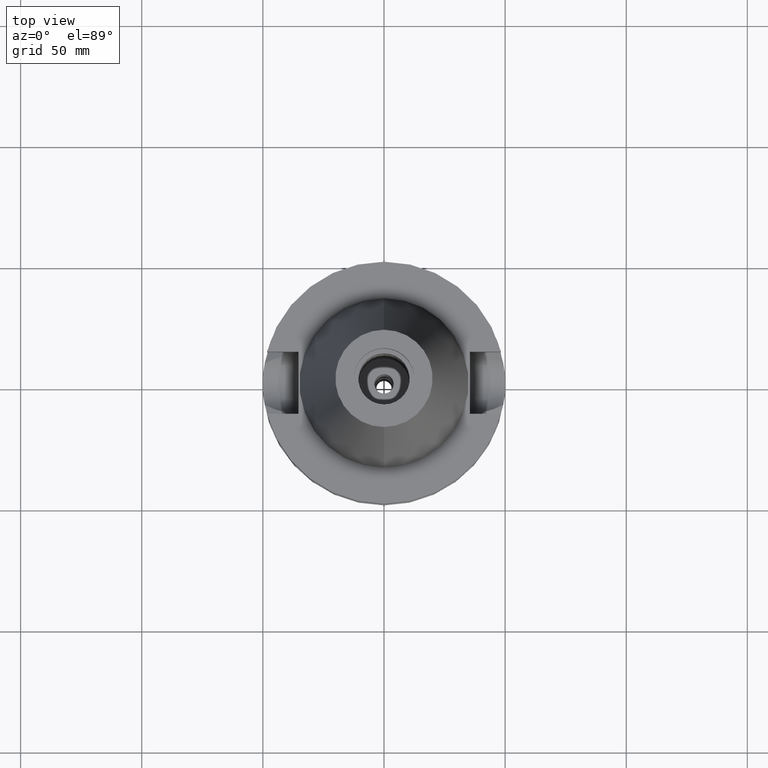
[diagram: clean part render]
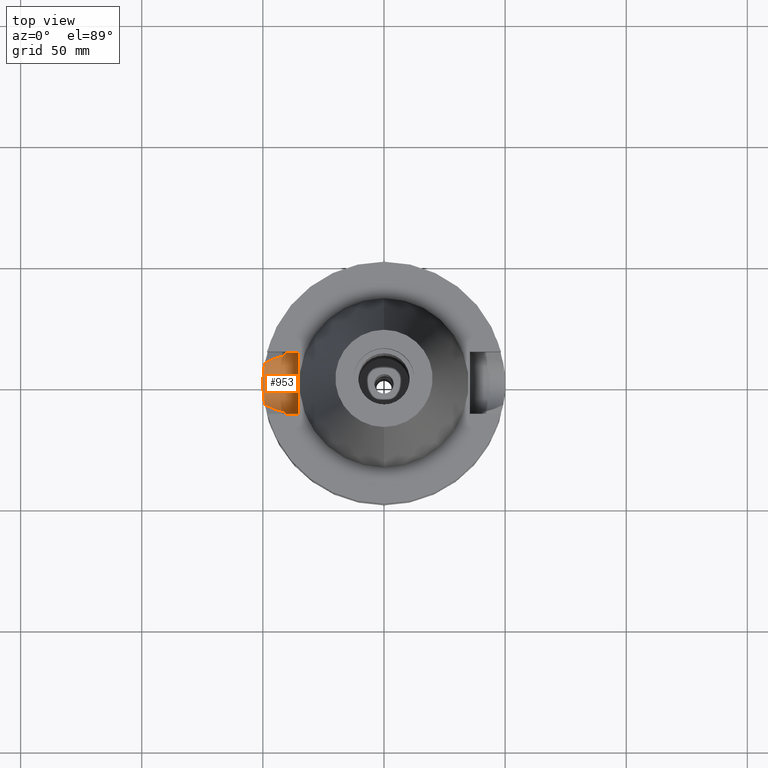
[diagram: same view with one face highlighted and labeled with its STEP entity id]
A machine part, top view. The second image highlights one B-rep face of the part: STEP entity #953.
In plain terms, the highlighted cylindrical surface (edge-blend (fillet) strip) has radius 12.85 mm, axis along (-1, 0, 0).
Its self-contained STEP definition (entity closure, byte-faithful):
#7 = CARTESIAN_POINT ( 'NONE',  ( -49.79190313580877358, 4.556817177125533469, -33.16490932789630364 ) ) ;
#9 = ORIENTED_EDGE ( 'NONE', *, *, #1934, .F. ) ;
#25 = CARTESIAN_POINT ( 'NONE',  ( -49.99918878544974632, 0.2915256912491507313, -33.99728939609978795 ) ) ;
#133 = CARTESIAN_POINT ( 'NONE',  ( -45.39752549457913489, -10.35896172530817161, -28.75360426430097860 ) ) ;
#217 = CARTESIAN_POINT ( 'NONE',  ( -40.51083188481999997, -12.84999999999998899, -22.03311098679651536 ) ) ;
#269 = CARTESIAN_POINT ( 'NONE',  ( -49.52345606502953501, 6.887109230730162679, -31.99909553111326233 ) ) ;
#279 = B_SPLINE_CURVE_WITH_KNOTS ( 'NONE', 3,
 ( #2786, #3357, #3089, #1391, #2530, #1041, #2750, #3670, #2168, #3306, #744, #3021, #472, #1600 ),
 .UNSPECIFIED., .F., .F.,
 ( 4, 2, 2, 1, 1, 2, 2, 4 ),
 ( 0.0000000000000000000, 0.2499999999999872324, 0.3749999999999807376, 0.4374999999999776845, 0.4687499999999753530, 0.4843749999999753530, 0.4999999999999753530, 1.000000000000000000 ),
 .UNSPECIFIED. ) ;
#288 = CARTESIAN_POINT ( 'NONE',  ( -49.91487582340965901, 3.004850454654083514, -33.66796213084406730 ) ) ;
#311 = CARTESIAN_POINT ( 'NONE',  ( -49.32369756959816698, 8.203703595875605714, -31.05175613994101980 ) ) ;
#326 = CARTESIAN_POINT ( 'NONE',  ( -49.99187023699030163, 0.9036077928675025905, -33.96960422973165805 ) ) ;
#347 = CARTESIAN_POINT ( 'NONE',  ( -49.66426015272440964, -5.786401570524954074, -32.62507869665538607 ) ) ;
#424 = CARTESIAN_POINT ( 'NONE',  ( -35.39999999999999858, 1.497743035356999952E-14, -21.14999999999999858 ) ) ;
#425 = EDGE_CURVE ( 'NONE', #450, #988, #2725, .T. ) ;
#441 = CARTESIAN_POINT ( 'NONE',  ( -45.32604759747161438, -10.38583453844825044, -28.71683438483158568 ) ) ;
#447 = B_SPLINE_CURVE_WITH_KNOTS ( 'NONE', 3,
 ( #3448, #311, #2836, #1103, #1155, #1451, #269, #3684, #3120, #2571, #2590, #1138, #1691, #2285, #2552, #1427, #2005, #1749, #3181, #1975, #1709, #2888, #7, #1121, #888, #288, #2246, #3411, #326, #1466, #25, #2852, #2026, #852, #1769, #1989, #1409, #607, #2608, #1175, #1729, #2048, #2902, #3470, #911, #625, #3389, #3429, #832, #347, #2532, #2874, #3671, #867, #3110, #552, #568, #3546, #3284, #2347, #686, #2127 ),
 .UNSPECIFIED., .F., .F.,
 ( 4, 2, 2, 1, 1, 1, 1, 2, 2, 2, 2, 1, 1, 1, 2, 2, 2, 2, 1, 1, 1, 2, 2, 2, 2, 1, 1, 1, 1, 2, 2, 2, 2, 1, 1, 1, 1, 2, 2, 4 ),
 ( 0.0000000000000000000, 0.06250000000002133016, 0.09375000000003193279, 0.1093750000000369982, 0.1171875000000398570, 0.1210937500000410089, 0.1230468750000415917, 0.1240234375000418138, 0.1250000000000420219, 0.1875000000000318079, 0.2187500000000266454, 0.2343750000000237865, 0.2421875000000224543, 0.2460937500000217326, 0.2480468750000216216, 0.2500000000000214828, 0.3750000000000229261, 0.4375000000000237588, 0.4687500000000241474, 0.4843750000000243139, 0.4921875000000244249, 0.4960937500000244804, 0.5000000000000245359, 0.6250000000000260902, 0.6875000000000267564, 0.7187500000000270894, 0.7343750000000270894, 0.7421875000000270894, 0.7460937500000273115, 0.7480468750000272005, 0.7500000000000270894, 0.8125000000000284217, 0.8437500000000290878, 0.8593750000000294209, 0.8671875000000298650, 0.8710937500000304201, 0.8730468750000306422, 0.8740234375000304201, 0.8750000000000301981, 1.000000000000000000 ),
 .UNSPECIFIED. ) ;
#450 = VERTEX_POINT ( 'NONE', #1271 ) ;
#457 = CARTESIAN_POINT ( 'NONE',  ( -49.26250064874000145, -8.556052234130000045, -30.73730776426999967 ) ) ;
#458 = CARTESIAN_POINT ( 'NONE',  ( -40.73816994080947751, 12.11682134610114936, -25.53412886424079886 ) ) ;
#467 = CARTESIAN_POINT ( 'NONE',  ( -40.63720115041248704, -12.44498656811013859, -24.35265160711855970 ) ) ;
#472 = CARTESIAN_POINT ( 'NONE',  ( -48.18081148163940952, 9.176796814631364541, -30.18333336547032530 ) ) ;
#475 = CARTESIAN_POINT ( 'NONE',  ( -40.51083188482000708, 12.85000000000001918, -21.59155814782481997 ) ) ;
#552 = CARTESIAN_POINT ( 'NONE',  ( -49.55867599779658406, -6.628592828939058101, -32.15838541685431551 ) ) ;
#568 = CARTESIAN_POINT ( 'NONE',  ( -49.55645080412972447, -6.645196272271792104, -32.14835934793998717 ) ) ;
#577 = CARTESIAN_POINT ( 'NONE',  ( -49.26250064874000145, 8.556052234130000045, -30.73730776426999967 ) ) ;
#597 = VECTOR ( 'NONE', #2196, 1000.000000000000000 ) ;
#607 = CARTESIAN_POINT ( 'NONE',  ( -49.92883535247280946, -2.681505937780090942, -33.72308165360714582 ) ) ;
#625 = CARTESIAN_POINT ( 'NONE',  ( -49.79134522950125330, -4.562917809081644016, -33.16259509173715969 ) ) ;
#686 = CARTESIAN_POINT ( 'NONE',  ( -49.38319382134579882, -7.861146764715416957, -31.35746596094909933 ) ) ;
#690 = CARTESIAN_POINT ( 'NONE',  ( -45.47884135725999499, -10.32818437781529752, -28.79543308990514205 ) ) ;
#703 = VERTEX_POINT ( 'NONE', #3619 ) ;
#710 = CARTESIAN_POINT ( 'NONE',  ( -46.22801765030641263, -10.03216824677965668, -29.18067066775586227 ) ) ;
#734 = CARTESIAN_POINT ( 'NONE',  ( -40.51083188481999997, 12.84999999999999964, -21.14999999999999858 ) ) ;
#744 = CARTESIAN_POINT ( 'NONE',  ( -45.48377902170304310, 10.32617152239460445, -28.79810286287142418 ) ) ;
#753 = EDGE_CURVE ( 'NONE', #3540, #450, #447, .T. ) ;
#789 = CARTESIAN_POINT ( 'NONE',  ( -40.54944865802444554, 12.72805685032255951, -22.93054388468756244 ) ) ;
#798 = LINE ( 'NONE', #1616, #597 ) ;
#812 = CYLINDRICAL_SURFACE ( 'NONE', #2979, 12.85000000000000320 ) ;
#832 = CARTESIAN_POINT ( 'NONE',  ( -49.72318384391200397, -5.264673822190257368, -32.87839317490580271 ) ) ;
#852 = CARTESIAN_POINT ( 'NONE',  ( -49.99991736553727861, 0.01130191160649509675, -34.00001617349634131 ) ) ;
#867 = CARTESIAN_POINT ( 'NONE',  ( -49.57410189276428980, -6.512428102365150906, -32.22769848499617495 ) ) ;
#888 = CARTESIAN_POINT ( 'NONE',  ( -49.86308249906416279, 3.775850015763280609, -33.45954281451273005 ) ) ;
#911 = CARTESIAN_POINT ( 'NONE',  ( -49.79350631850828535, -4.539276377522185157, -33.17154855827365623 ) ) ;
#912 = CARTESIAN_POINT ( 'NONE',  ( -40.85052569294000335, 11.72538061688000077, -26.40718074535000426 ) ) ;
#917 = B_SPLINE_CURVE_WITH_KNOTS ( 'NONE', 3,
 ( #2177, #1084, #2228, #2781, #3017, #467, #2213, #3381, #3365, #1936, #3083, #2767, #217, #1334 ),
 .UNSPECIFIED., .F., .F.,
 ( 4, 2, 2, 1, 1, 2, 2, 4 ),
 ( 0.0000000000000000000, 0.2500000000000079381, 0.3750000000000107692, 0.4375000000000123235, 0.4687500000000121569, 0.4843750000000121569, 0.5000000000000121014, 1.000000000000000000 ),
 .UNSPECIFIED. ) ;
#953 = ADVANCED_FACE ( 'NONE', ( #1882 ), #812, .F. ) ;
#975 = ORIENTED_EDGE ( 'NONE', *, *, #2868, .T. ) ;
#988 = VERTEX_POINT ( 'NONE', #1301 ) ;
#998 = EDGE_CURVE ( 'NONE', #3382, #703, #798, .T. ) ;
#1032 = CARTESIAN_POINT ( 'NONE',  ( -40.85052569294000335, 11.72538061688000077, -26.40718074535000426 ) ) ;
#1041 = CARTESIAN_POINT ( 'NONE',  ( -44.65682647268858574, 10.62864182119725598, -28.37268294631928001 ) ) ;
#1045 = CARTESIAN_POINT ( 'NONE',  ( -40.54025418821385784, 12.75731235968221178, -22.70688809822139831 ) ) ;
#1084 = CARTESIAN_POINT ( 'NONE',  ( -40.79434747814746487, -11.92110216159726477, -25.97065217273899052 ) ) ;
#1103 = CARTESIAN_POINT ( 'NONE',  ( -49.45252181870450414, 7.379311468487084191, -31.67177590204756754 ) ) ;
#1121 = CARTESIAN_POINT ( 'NONE',  ( -49.79275732134239973, 4.547483022017773102, -33.16844661958323570 ) ) ;
#1133 = AXIS2_PLACEMENT_3D ( 'NONE', #424, #3558, #1209 ) ;
#1138 = CARTESIAN_POINT ( 'NONE',  ( -49.55601938755157221, 6.648398653708681216, -32.14642309857691771 ) ) ;
#1155 = CARTESIAN_POINT ( 'NONE',  ( -49.47556776255890298, 7.223238671039283076, -31.77919332691482524 ) ) ;
#1175 = CARTESIAN_POINT ( 'NONE',  ( -49.86764686228202947, -3.636664092212686494, -33.47624956171179633 ) ) ;
#1209 = DIRECTION ( 'NONE',  ( 0.0000000000000000000, -1.000000000000000000, 0.0000000000000000000 ) ) ;
#1249 = CARTESIAN_POINT ( 'NONE',  ( -35.39999999999999858, -12.84999999999999964, -21.14999999999999858 ) ) ;
#1271 = CARTESIAN_POINT ( 'NONE',  ( -49.26250064874000145, -8.556052234130000045, -30.73730776426999967 ) ) ;
#1273 = LINE ( 'NONE', #3554, #2981 ) ;
#1274 = ORIENTED_EDGE ( 'NONE', *, *, #2606, .T. ) ;
#1301 = CARTESIAN_POINT ( 'NONE',  ( -40.85052569294000335, -11.72538061688000077, -26.40718074535000426 ) ) ;
#1305 = CARTESIAN_POINT ( 'NONE',  ( -48.69464159862322106, -8.881927206880240178, -30.44648542319169948 ) ) ;
#1334 = CARTESIAN_POINT ( 'NONE',  ( -40.51083188481999997, -12.84999999999999964, -21.14999999999999858 ) ) ;
#1391 = CARTESIAN_POINT ( 'NONE',  ( -43.73413399326548046, 10.93838328694445039, -27.89750808227450207 ) ) ;
#1409 = CARTESIAN_POINT ( 'NONE',  ( -49.98151726922713323, -1.537017213945275573, -33.93129506484088154 ) ) ;
#1427 = CARTESIAN_POINT ( 'NONE',  ( -49.70802902540889789, 5.397483289437420062, -32.81309430075868505 ) ) ;
#1451 = CARTESIAN_POINT ( 'NONE',  ( -49.50787092336805273, 6.997722633599319231, -31.92787014503069898 ) ) ;
#1466 = CARTESIAN_POINT ( 'NONE',  ( -49.99656935723672291, 0.6200430165758886725, -33.98744614804078168 ) ) ;
#1547 = ORIENTED_EDGE ( 'NONE', *, *, #425, .T. ) ;
#1600 = CARTESIAN_POINT ( 'NONE',  ( -49.26250064874000145, 8.556052234130000045, -30.73730776426999967 ) ) ;
#1616 = CARTESIAN_POINT ( 'NONE',  ( -40.51083188481999997, 12.84999999999999964, -21.14999999999999858 ) ) ;
#1691 = CARTESIAN_POINT ( 'NONE',  ( -49.55642839046791437, 6.645350892882539107, -32.14826596383186796 ) ) ;
#1709 = CARTESIAN_POINT ( 'NONE',  ( -49.78701911214649556, 4.609908264338869799, -33.14467182157365244 ) ) ;
#1729 = CARTESIAN_POINT ( 'NONE',  ( -49.84637315204867036, -3.922661578333166865, -33.38950660949421945 ) ) ;
#1749 = CARTESIAN_POINT ( 'NONE',  ( -49.75306724046138385, 4.963223255169641135, -33.00317556818499298 ) ) ;
#1769 = CARTESIAN_POINT ( 'NONE',  ( -49.99991625533953510, -0.01371456479971565681, -34.00001357600843477 ) ) ;
#1845 = VERTEX_POINT ( 'NONE', #1249 ) ;
#1871 = CARTESIAN_POINT ( 'NONE',  ( -40.57496331174878890, 12.64632619881939668, -23.43376116606531667 ) ) ;
#1882 = FACE_OUTER_BOUND ( 'NONE', #2646, .T. ) ;
#1920 = DIRECTION ( 'NONE',  ( 0.0000000000000000000, 0.0000000000000000000, -1.000000000000000000 ) ) ;
#1934 = EDGE_CURVE ( 'NONE', #1845, #2605, #1273, .T. ) ;
#1936 = CARTESIAN_POINT ( 'NONE',  ( -40.60257358959407270, -12.55730255709575616, -23.87715530986269385 ) ) ;
#1975 = CARTESIAN_POINT ( 'NONE',  ( -49.78008232300462765, 4.684409442613518770, -33.11588758421653722 ) ) ;
#1989 = CARTESIAN_POINT ( 'NONE',  ( -49.99935165416789573, -0.7784239455592615320, -33.99781837041427934 ) ) ;
#2005 = CARTESIAN_POINT ( 'NONE',  ( -49.72668424268396592, 5.222831056704321462, -32.89222978299362410 ) ) ;
#2026 = CARTESIAN_POINT ( 'NONE',  ( -49.99988398040463267, 0.05792329643793676236, -33.99989059424450488 ) ) ;
#2048 = CARTESIAN_POINT ( 'NONE',  ( -49.81871769257744376, -4.255133180566219586, -33.27576126222464126 ) ) ;
#2127 = CARTESIAN_POINT ( 'NONE',  ( -49.26250064874000145, -8.556052234130000045, -30.73730776426999967 ) ) ;
#2150 = CARTESIAN_POINT ( 'NONE',  ( -40.85052569294000335, -11.72538061688000077, -26.40718074535000426 ) ) ;
#2168 = CARTESIAN_POINT ( 'NONE',  ( -45.35775471826055139, 10.37386167784956825, -28.73328654239062629 ) ) ;
#2177 = CARTESIAN_POINT ( 'NONE',  ( -40.85052569294000335, -11.72538061688000077, -26.40718074535000426 ) ) ;
#2184 = CARTESIAN_POINT ( 'NONE',  ( -40.65436097482999855, 12.39000951528301364, -24.66364262356657377 ) ) ;
#2196 = DIRECTION ( 'NONE',  ( 1.000000000000000000, 3.301887120261000215E-14, -2.502482870091999982E-14 ) ) ;
#2203 = ORIENTED_EDGE ( 'NONE', *, *, #998, .F. ) ;
#2213 = CARTESIAN_POINT ( 'NONE',  ( -40.62483164124756030, -12.48524007483834097, -24.19334343394760722 ) ) ;
#2228 = CARTESIAN_POINT ( 'NONE',  ( -40.74530552705318343, -12.08734373585977018, -25.53456320654999345 ) ) ;
#2246 = CARTESIAN_POINT ( 'NONE',  ( -49.96639091858009607, 1.855009112725644504, -33.87135770005406954 ) ) ;
#2270 = CIRCLE ( 'NONE', #1133, 12.84999999999999964 ) ;
#2285 = CARTESIAN_POINT ( 'NONE',  ( -49.60515397022284390, 6.281699428066808366, -32.36773838318623575 ) ) ;
#2347 = CARTESIAN_POINT ( 'NONE',  ( -49.48018584324755409, -7.212056195266530523, -31.80433119710467693 ) ) ;
#2413 = CARTESIAN_POINT ( 'NONE',  ( -46.75505769100767139, -9.811300290057515028, -29.45151618928202097 ) ) ;
#2470 = CARTESIAN_POINT ( 'NONE',  ( -40.58662879532096923, 12.60876850763472490, -23.62934185162412248 ) ) ;
#2530 = CARTESIAN_POINT ( 'NONE',  ( -44.11097139946421208, 10.81602773071208468, -28.09166750528168777 ) ) ;
#2532 = CARTESIAN_POINT ( 'NONE',  ( -49.64357081513688996, -5.961532522826956892, -32.53519818224370397 ) ) ;
#2552 = CARTESIAN_POINT ( 'NONE',  ( -49.64886371731348902, 5.925076879177442635, -32.55913415156561541 ) ) ;
#2571 = CARTESIAN_POINT ( 'NONE',  ( -49.55310733094160014, 6.670070396123554346, -32.13329829195288312 ) ) ;
#2577 = ORIENTED_EDGE ( 'NONE', *, *, #3363, .T. ) ;
#2590 = CARTESIAN_POINT ( 'NONE',  ( -49.55485633502866705, 6.657059842545933748, -32.14118191434904048 ) ) ;
#2605 = VERTEX_POINT ( 'NONE', #2769 ) ;
#2606 = EDGE_CURVE ( 'NONE', #3267, #3540, #279, .T. ) ;
#2608 = CARTESIAN_POINT ( 'NONE',  ( -49.90695299033081511, -3.064054276654787135, -33.63563523808346645 ) ) ;
#2646 = EDGE_LOOP ( 'NONE', ( #2577, #9, #3426, #2203, #975, #1274, #2893, #1547 ) ) ;
#2654 = CARTESIAN_POINT ( 'NONE',  ( -42.52884939900980044, -11.33562612316247531, -27.27647172227283789 ) ) ;
#2697 = CARTESIAN_POINT ( 'NONE',  ( -45.96028322357604878, -10.14133759930534495, -29.04303852548128617 ) ) ;
#2725 = B_SPLINE_CURVE_WITH_KNOTS ( 'NONE', 3,
 ( #457, #1305, #3552, #3567, #2413, #710, #2697, #3291, #690, #133, #2990, #2936, #441, #3009, #2654, #2150 ),
 .UNSPECIFIED., .F., .F.,
 ( 4, 2, 2, 1, 1, 1, 1, 2, 2, 4 ),
 ( 0.0000000000000000000, 0.2500000000000531797, 0.3750000000000797695, 0.4375000000000933142, 0.4687500000001000311, 0.4843750000001036393, 0.4921875000001046940, 0.4960937500001051381, 0.5000000000001055822, 1.000000000000000000 ),
 .UNSPECIFIED. ) ;
#2750 = CARTESIAN_POINT ( 'NONE',  ( -44.92490375028230432, 10.53398466652059540, -28.51063611605064452 ) ) ;
#2767 = CARTESIAN_POINT ( 'NONE',  ( -40.54025177940136615, -12.75862267497680236, -22.93154239031998998 ) ) ;
#2769 = CARTESIAN_POINT ( 'NONE',  ( -40.51083188481999997, -12.84999999999999964, -21.14999999999999858 ) ) ;
#2781 = CARTESIAN_POINT ( 'NONE',  ( -40.68244699595920366, -12.29665972424316855, -24.88712495127480651 ) ) ;
#2786 = CARTESIAN_POINT ( 'NONE',  ( -40.85052569294000335, 11.72538061688000077, -26.40718074535000426 ) ) ;
#2787 = B_SPLINE_CURVE_WITH_KNOTS ( 'NONE', 3,
 ( #734, #475, #3588, #1045, #789, #3608, #1871, #2470, #3553, #3309, #3010, #2184, #458, #1032 ),
 .UNSPECIFIED., .F., .F.,
 ( 4, 2, 2, 1, 1, 2, 2, 4 ),
 ( 0.0000000000000000000, 0.2499999999999882871, 0.3749999999999835132, 0.4374999999999812927, 0.4687499999999811262, 0.4843749999999810707, 0.4999999999999810152, 1.000000000000000000 ),
 .UNSPECIFIED. ) ;
#2836 = CARTESIAN_POINT ( 'NONE',  ( -49.37885247719656689, 7.862144687236257035, -31.32188303336105761 ) ) ;
#2852 = CARTESIAN_POINT ( 'NONE',  ( -49.99978277987096220, 0.1279040283714520387, -33.99951180099083103 ) ) ;
#2868 = EDGE_CURVE ( 'NONE', #3382, #3267, #2787, .T. ) ;
#2874 = CARTESIAN_POINT ( 'NONE',  ( -49.61096464796816008, -6.225456151459805909, -32.39171795695273204 ) ) ;
#2888 = CARTESIAN_POINT ( 'NONE',  ( -49.78995452580679171, 4.578044775722847071, -33.15683700958722113 ) ) ;
#2893 = ORIENTED_EDGE ( 'NONE', *, *, #753, .T. ) ;
#2902 = CARTESIAN_POINT ( 'NONE',  ( -49.80418093012539771, -4.420986045285522081, -33.21572998610044181 ) ) ;
#2936 = CARTESIAN_POINT ( 'NONE',  ( -45.33925616023898186, -10.38088120372761303, -28.72362928943382698 ) ) ;
#2979 = AXIS2_PLACEMENT_3D ( 'NONE', #3059, #3073, #1920 ) ;
#2981 = VECTOR ( 'NONE', #3517, 1000.000000000000000 ) ;
#2990 = CARTESIAN_POINT ( 'NONE',  ( -45.36257706399497636, -10.37211797163372040, -28.73562614173595975 ) ) ;
#3009 = CARTESIAN_POINT ( 'NONE',  ( -44.01730827850749961, -10.87583879569200640, -28.04357024469653226 ) ) ;
#3010 = CARTESIAN_POINT ( 'NONE',  ( -40.59737185188193109, 12.57410792978862091, -23.79858982319761651 ) ) ;
#3017 = CARTESIAN_POINT ( 'NONE',  ( -40.66327821818576638, -12.35976375022870855, -24.67241565216504640 ) ) ;
#3021 = CARTESIAN_POINT ( 'NONE',  ( -46.93590555069773274, 9.770490704235923474, -29.54492819723849095 ) ) ;
#3059 = CARTESIAN_POINT ( 'NONE',  ( -35.39999999999999858, 1.497743035356999952E-14, -21.14999999999999858 ) ) ;
#3073 = DIRECTION ( 'NONE',  ( -1.000000000000000000, 0.0000000000000000000, 0.0000000000000000000 ) ) ;
#3083 = CARTESIAN_POINT ( 'NONE',  ( -40.60093031197541080, -12.56261288210719407, -23.85260464679963022 ) ) ;
#3089 = CARTESIAN_POINT ( 'NONE',  ( -42.56481970252170299, 11.29548946668518461, -27.29433029042749936 ) ) ;
#3110 = CARTESIAN_POINT ( 'NONE',  ( -49.56384662196682456, -6.589859603395078480, -32.18165515077053129 ) ) ;
#3120 = CARTESIAN_POINT ( 'NONE',  ( -49.54899534428635377, 6.700559330291513405, -32.11474970741010537 ) ) ;
#3181 = CARTESIAN_POINT ( 'NONE',  ( -49.76585878231631455, 4.834011012353538916, -33.05670933692287861 ) ) ;
#3267 = VERTEX_POINT ( 'NONE', #912 ) ;
#3284 = CARTESIAN_POINT ( 'NONE',  ( -49.55404929937654401, -6.663081176532736016, -32.13753266283685406 ) ) ;
#3291 = CARTESIAN_POINT ( 'NONE',  ( -45.64055118122607979, -10.26631470387935430, -28.87860995755430338 ) ) ;
#3306 = CARTESIAN_POINT ( 'NONE',  ( -45.44307192827641728, 10.34164228045254497, -28.77716696017039055 ) ) ;
#3309 = CARTESIAN_POINT ( 'NONE',  ( -40.59544973979549098, 12.58031391753905659, -23.76897202843516155 ) ) ;
#3357 = CARTESIAN_POINT ( 'NONE',  ( -41.73354074582920958, 11.52031940989188996, -26.86454008263877924 ) ) ;
#3363 = EDGE_CURVE ( 'NONE', #988, #2605, #917, .T. ) ;
#3365 = CARTESIAN_POINT ( 'NONE',  ( -40.60613923871428455, -12.54577469983268934, -23.92970515983149227 ) ) ;
#3381 = CARTESIAN_POINT ( 'NONE',  ( -40.61157134048480799, -12.52820429569616145, -24.00861743068358933 ) ) ;
#3382 = VERTEX_POINT ( 'NONE', #3615 ) ;
#3389 = CARTESIAN_POINT ( 'NONE',  ( -49.79013702929756846, -4.576075037620417341, -33.15758772687343736 ) ) ;
#3411 = CARTESIAN_POINT ( 'NONE',  ( -49.97920013507896897, 1.472795260917748594, -33.92099889282575731 ) ) ;
#3426 = ORIENTED_EDGE ( 'NONE', *, *, #3597, .T. ) ;
#3429 = CARTESIAN_POINT ( 'NONE',  ( -49.75827387593714946, -4.921781669319632790, -33.02549376395202785 ) ) ;
#3448 = CARTESIAN_POINT ( 'NONE',  ( -49.26250064874000145, 8.556052234130000045, -30.73730776426999967 ) ) ;
#3470 = CARTESIAN_POINT ( 'NONE',  ( -49.79673529072028515, -4.503806050171714759, -33.18492202723462015 ) ) ;
#3517 = DIRECTION ( 'NONE',  ( -1.000000000000000000, 3.440913946376999995E-14, 0.0000000000000000000 ) ) ;
#3540 = VERTEX_POINT ( 'NONE', #577 ) ;
#3546 = CARTESIAN_POINT ( 'NONE',  ( -49.55496529460078392, -6.656265981459537073, -32.14166343314325758 ) ) ;
#3552 = CARTESIAN_POINT ( 'NONE',  ( -48.08182888045591596, -9.200268783131313910, -30.13252269354203250 ) ) ;
#3553 = CARTESIAN_POINT ( 'NONE',  ( -40.59188688274389989, 12.59181081969988547, -23.71312563688195851 ) ) ;
#3554 = CARTESIAN_POINT ( 'NONE',  ( -35.39999999999999858, -12.84999999999999964, -21.14999999999999858 ) ) ;
#3558 = DIRECTION ( 'NONE',  ( 1.000000000000000000, 0.0000000000000000000, 0.0000000000000000000 ) ) ;
#3567 = CARTESIAN_POINT ( 'NONE',  ( -47.09517930112918549, -9.660683931706696370, -29.62618580949758140 ) ) ;
#3588 = CARTESIAN_POINT ( 'NONE',  ( -40.51818746066846444, 12.82722055570327768, -22.03689885944119098 ) ) ;
#3597 = EDGE_CURVE ( 'NONE', #1845, #703, #2270, .T. ) ;
#3608 = CARTESIAN_POINT ( 'NONE',  ( -40.56599870368347638, 12.67508435574810299, -23.26602303915987235 ) ) ;
#3615 = CARTESIAN_POINT ( 'NONE',  ( -40.51083188481999997, 12.84999999999999964, -21.14999999999999858 ) ) ;
#3619 = CARTESIAN_POINT ( 'NONE',  ( -35.39999999999999858, 12.84999999999999964, -21.14999999999999858 ) ) ;
#3670 = CARTESIAN_POINT ( 'NONE',  ( -45.22917262085938717, 10.42209925739802046, -28.66715216717826209 ) ) ;
#3671 = CARTESIAN_POINT ( 'NONE',  ( -49.59426852418690146, -6.357723773497696129, -32.31781328775642947 ) ) ;
#3684 = CARTESIAN_POINT ( 'NONE',  ( -49.54064746250079310, 6.762057735916821244, -32.07703431492269175 ) ) ;